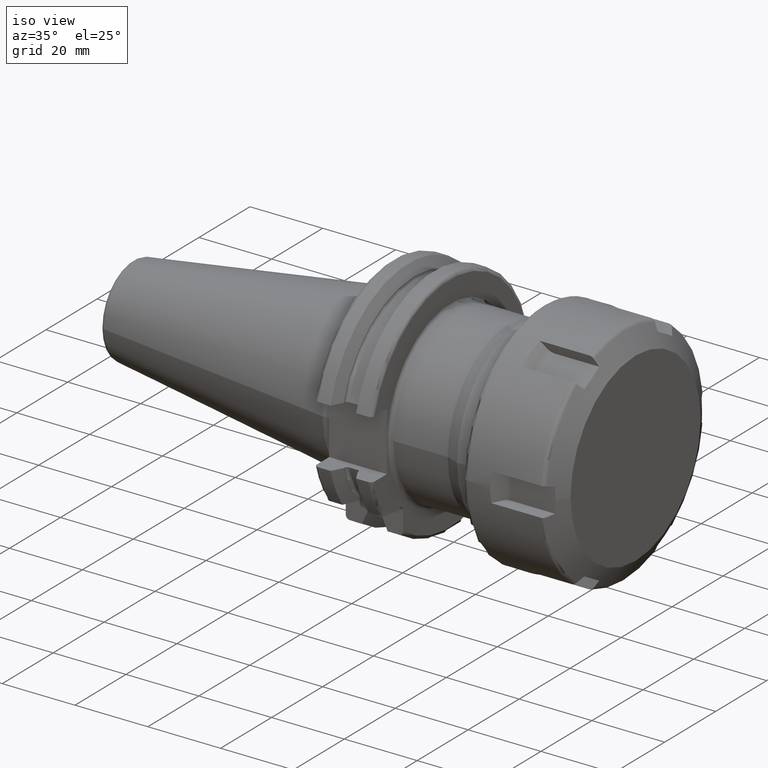
[diagram: clean part render]
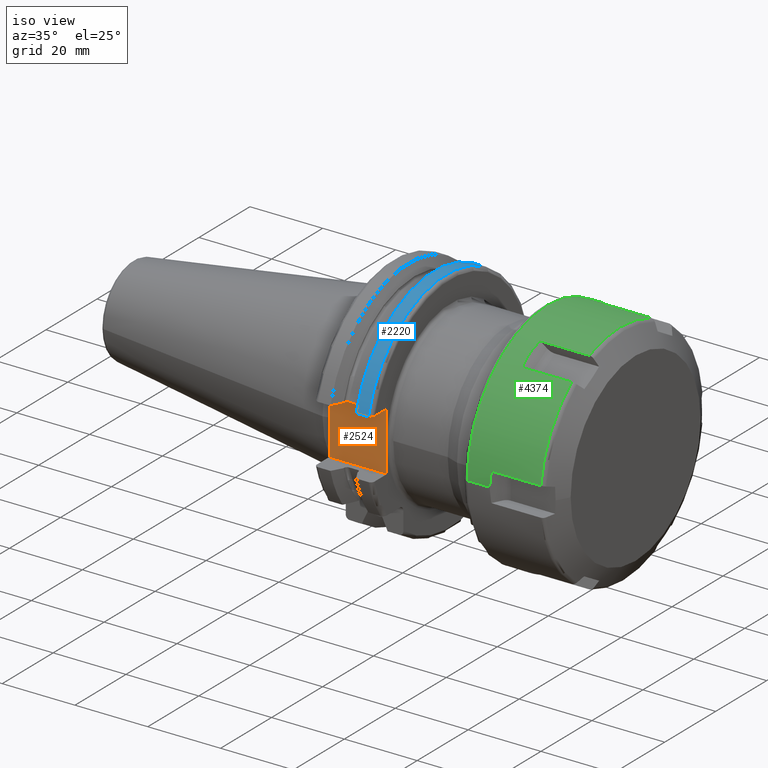
[diagram: same view with three faces highlighted in distinct colors, each labeled with its STEP entity id]
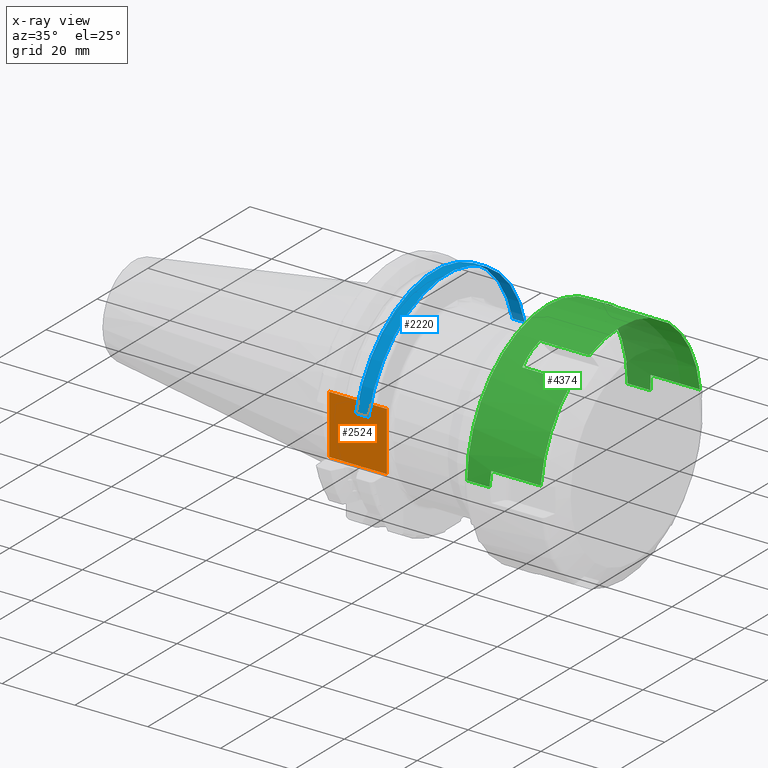
[diagram: x-ray of the same camera — body ghosted, the three highlighted faces saturated]
A machine part, iso view with three faces highlighted in distinct colors.
The next image is the same camera in x-ray (body ghosted, the three faces saturated) — at least one of them is partly hidden behind the body in this view.
Their STEP definitions:

[orange] entity #2524 — the highlighted planar face has unit normal (0, 1, 0).
#150=DIRECTION('',(0.E0,0.E0,1.E0));
#151=VECTOR('',#150,1.62E1);
#152=CARTESIAN_POINT('',(1.905E1,-2.485E1,-8.1E0));
#153=LINE('',#152,#151);
#358=DIRECTION('',(-1.E0,0.E0,0.E0));
#359=VECTOR('',#358,1.585E1);
#360=CARTESIAN_POINT('',(1.905E1,-2.485E1,8.1E0));
#361=LINE('',#360,#359);
#636=DIRECTION('',(0.E0,0.E0,1.E0));
#637=VECTOR('',#636,1.62E1);
#638=CARTESIAN_POINT('',(3.2E0,-2.485E1,-8.1E0));
#639=LINE('',#638,#637);
#865=DIRECTION('',(-1.E0,0.E0,0.E0));
#866=VECTOR('',#865,1.585E1);
#867=CARTESIAN_POINT('',(1.905E1,-2.485E1,-8.1E0));
#868=LINE('',#867,#866);
#1402=CARTESIAN_POINT('',(1.905E1,-2.485E1,-8.1E0));
#1404=VERTEX_POINT('',#1402);
#1405=CARTESIAN_POINT('',(1.905E1,-2.485E1,8.1E0));
#1406=VERTEX_POINT('',#1405);
#1430=CARTESIAN_POINT('',(3.2E0,-2.485E1,-8.1E0));
#1432=VERTEX_POINT('',#1430);
#1433=CARTESIAN_POINT('',(3.2E0,-2.485E1,8.1E0));
#1434=VERTEX_POINT('',#1433);
#2513=CARTESIAN_POINT('',(1.905E1,-2.485E1,-8.1E0));
#2514=DIRECTION('',(0.E0,1.E0,0.E0));
#2515=DIRECTION('',(0.E0,0.E0,1.E0));
#2516=AXIS2_PLACEMENT_3D('',#2513,#2514,#2515);
#2517=PLANE('',#2516);
#2518=ORIENTED_EDGE('',*,*,#1759,.F.);
#2519=ORIENTED_EDGE('',*,*,#2472,.T.);
#2520=ORIENTED_EDGE('',*,*,#2268,.T.);
#2521=ORIENTED_EDGE('',*,*,#2041,.F.);
#2522=EDGE_LOOP('',(#2518,#2519,#2520,#2521));
#2523=FACE_OUTER_BOUND('',#2522,.F.);
#2524=ADVANCED_FACE('',(#2523),#2517,.F.);
#1759=EDGE_CURVE('',#1404,#1406,#153,.T.);
#2041=EDGE_CURVE('',#1406,#1434,#361,.T.);
#2268=EDGE_CURVE('',#1432,#1434,#639,.T.);
#2472=EDGE_CURVE('',#1404,#1432,#868,.T.);

[blue] entity #2220 — the highlighted cylindrical surface (partial cylindrical patch) has radius 31.7625 mm, axis along (1, 0, 0).
#507=CARTESIAN_POINT('',(1.470405352042E1,3.071231684927E1,8.1E0));
#519=CARTESIAN_POINT('',(1.470405352042E1,-3.071231684927E1,8.1E0));
#539=DIRECTION('',(1.E0,0.E0,0.E0));
#540=VECTOR('',#539,3.345946479578E0);
#541=CARTESIAN_POINT('',(1.470405352042E1,3.071231684927E1,8.1E0));
#542=LINE('',#541,#540);
#543=CARTESIAN_POINT('',(1.805E1,0.E0,0.E0));
#544=DIRECTION('',(1.E0,0.E0,0.E0));
#545=DIRECTION('',(0.E0,9.669363825036E-1,2.550177095632E-1));
#546=AXIS2_PLACEMENT_3D('',#543,#544,#545);
#548=DIRECTION('',(1.E0,0.E0,0.E0));
#549=VECTOR('',#548,3.345946479578E0);
#550=CARTESIAN_POINT('',(1.470405352042E1,-3.071231684927E1,8.1E0));
#551=LINE('',#550,#549);
#552=CARTESIAN_POINT('',(1.470405352042E1,0.E0,0.E0));
#553=DIRECTION('',(1.E0,0.E0,0.E0));
#554=DIRECTION('',(0.E0,9.669363825036E-1,2.550177095632E-1));
#555=AXIS2_PLACEMENT_3D('',#552,#553,#554);
#1387=VERTEX_POINT('',#507);
#1388=VERTEX_POINT('',#519);
#1411=CARTESIAN_POINT('',(1.805E1,3.071231684927E1,8.1E0));
#1412=VERTEX_POINT('',#1411);
#1415=CARTESIAN_POINT('',(1.805E1,-3.071231684927E1,8.1E0));
#1416=VERTEX_POINT('',#1415);
#2209=CARTESIAN_POINT('',(-7.2615E1,0.E0,0.E0));
#2210=DIRECTION('',(1.E0,0.E0,0.E0));
#2211=DIRECTION('',(0.E0,-1.E0,0.E0));
#2212=AXIS2_PLACEMENT_3D('',#2209,#2210,#2211);
#2213=CYLINDRICAL_SURFACE('',#2212,3.17625E1);
#2214=ORIENTED_EDGE('',*,*,#1981,.T.);
#2215=ORIENTED_EDGE('',*,*,#2015,.T.);
#2216=ORIENTED_EDGE('',*,*,#2037,.F.);
#2217=ORIENTED_EDGE('',*,*,#2188,.F.);
#2218=EDGE_LOOP('',(#2214,#2215,#2216,#2217));
#2219=FACE_OUTER_BOUND('',#2218,.F.);
#2220=ADVANCED_FACE('',(#2219),#2213,.T.);
#547=CIRCLE('',#546,3.17625E1);
#556=CIRCLE('',#555,3.17625E1);
#1981=EDGE_CURVE('',#1387,#1412,#542,.T.);
#2015=EDGE_CURVE('',#1412,#1416,#547,.T.);
#2037=EDGE_CURVE('',#1388,#1416,#551,.T.);
#2188=EDGE_CURVE('',#1387,#1388,#556,.T.);

[green] entity #4374 — the highlighted cylindrical surface (partial cylindrical patch) has radius 31.5 mm, axis along (1, 0, 0).
#3248=DIRECTION('',(-1.E0,0.E0,1.226696553146E-12));
#3249=VECTOR('',#3248,6.25E0);
#3250=CARTESIAN_POINT('',(7.5E0,3.149999999997E1,3.183525763783E-14));
#3251=LINE('',#3250,#3249);
#3257=DIRECTION('',(-1.E0,0.E0,-1.230541309323E-12));
#3258=VECTOR('',#3257,6.25E0);
#3259=CARTESIAN_POINT('',(7.5E0,-3.149999999997E1,0.E0));
#3260=LINE('',#3259,#3258);
#3297=CARTESIAN_POINT('',(2.131421054840E1,1.906488828622E1,2.507548672772E1));
#3317=CARTESIAN_POINT('',(2.131421054840E1,3.124845266157E1,3.972934212316E0));
#3319=CARTESIAN_POINT('',(2.131421054840E1,-1.218356437536E1,2.904842094003E1));
#3339=CARTESIAN_POINT('',(2.131421054840E1,1.218356437536E1,2.904842094003E1));
#3341=CARTESIAN_POINT('',(2.131421054840E1,-3.124845266157E1,3.972934212316E0));
#3361=CARTESIAN_POINT('',(2.131421054840E1,-1.906488828622E1,2.507548672772E1));
#3566=CARTESIAN_POINT('',(7.5E0,-3.148999999997E1,7.936623967406E-1));
#3567=CARTESIAN_POINT('',(7.526914489918E0,-3.146308551005E1,1.861543766702E0));
#3568=CARTESIAN_POINT('',(7.607834703287E0,-3.138216529668E1,2.921239740395E0));
#3569=CARTESIAN_POINT('',(7.741547338395E0,-3.124845266157E1,3.972934212316E0));
#3585=DIRECTION('',(1.E0,0.E0,0.E0));
#3586=VECTOR('',#3585,1.357266321E1);
#3587=CARTESIAN_POINT('',(7.741547338395E0,-3.124845266157E1,3.972934212316E0));
#3588=LINE('',#3587,#3586);
#3589=CARTESIAN_POINT('',(7.5E0,0.E0,0.E0));
#3590=DIRECTION('',(1.E0,0.E0,0.E0));
#3591=DIRECTION('',(0.E0,-9.996825396825E-1,2.519563164259E-2));
#3592=AXIS2_PLACEMENT_3D('',#3589,#3590,#3591);
#3594=CARTESIAN_POINT('',(1.25E0,0.E0,0.E0));
#3595=DIRECTION('',(-1.E0,0.E0,0.E0));
#3596=DIRECTION('',(0.E0,-1.E0,0.E0));
#3597=AXIS2_PLACEMENT_3D('',#3594,#3595,#3596);
#3599=CARTESIAN_POINT('',(7.5E0,0.E0,0.E0));
#3600=DIRECTION('',(1.E0,0.E0,0.E0));
#3601=DIRECTION('',(0.E0,1.E0,0.E0));
#3602=AXIS2_PLACEMENT_3D('',#3599,#3600,#3601);
#3604=DIRECTION('',(1.E0,0.E0,0.E0));
#3605=VECTOR('',#3604,1.357266321E1);
#3606=CARTESIAN_POINT('',(7.741547338395E0,3.124845266157E1,3.972934212316E0));
#3607=LINE('',#3606,#3605);
#3608=CARTESIAN_POINT('',(2.131421054840E1,0.E0,0.E0));
#3609=DIRECTION('',(-1.E0,0.E0,0.E0));
#3610=DIRECTION('',(0.E0,6.052345487694E-1,7.960471977062E-1));
#3611=AXIS2_PLACEMENT_3D('',#3608,#3609,#3610);
#3613=DIRECTION('',(1.E0,0.E0,0.E0));
#3614=VECTOR('',#3613,1.357266321E1);
#3615=CARTESIAN_POINT('',(7.741547338395E0,1.906488828622E1,2.507548672772E1));
#3616=LINE('',#3615,#3614);
#3617=CARTESIAN_POINT('',(7.741547338395E0,1.906488828622E1,2.507548672772E1));
#3618=CARTESIAN_POINT('',(7.404800931005E0,1.693948685296E1,2.669142907526E1));
#3619=CARTESIAN_POINT('',(7.404800931005E0,1.464571221600E1,2.801574047936E1));
#3620=CARTESIAN_POINT('',(7.741547338395E0,1.218356437536E1,2.904842094003E1));
#3622=DIRECTION('',(1.E0,0.E0,0.E0));
#3623=VECTOR('',#3622,1.357266321E1);
#3624=CARTESIAN_POINT('',(7.741547338395E0,1.218356437536E1,2.904842094003E1));
#3625=LINE('',#3624,#3623);
#3626=CARTESIAN_POINT('',(2.131421054840E1,0.E0,0.E0));
#3627=DIRECTION('',(-1.E0,0.E0,0.E0));
#3628=DIRECTION('',(0.E0,-3.867798214403E-1,9.221720933354E-1));
#3629=AXIS2_PLACEMENT_3D('',#3626,#3627,#3628);
#3631=DIRECTION('',(1.E0,0.E0,0.E0));
#3632=VECTOR('',#3631,1.357266321E1);
#3633=CARTESIAN_POINT('',(7.741547338395E0,-1.218356437536E1,2.904842094003E1));
#3634=LINE('',#3633,#3632);
#3635=CARTESIAN_POINT('',(7.741547338395E0,-1.218356437536E1,2.904842094003E1));
#3636=CARTESIAN_POINT('',(7.404800931005E0,-1.464571221600E1,2.801574047936E1));
#3637=CARTESIAN_POINT('',(7.404800931005E0,-1.693948685296E1,2.669142907526E1));
#3638=CARTESIAN_POINT('',(7.741547338395E0,-1.906488828622E1,2.507548672772E1));
#3640=DIRECTION('',(1.E0,0.E0,0.E0));
#3641=VECTOR('',#3640,1.357266321E1);
#3642=CARTESIAN_POINT('',(7.741547338395E0,-1.906488828622E1,2.507548672772E1));
#3643=LINE('',#3642,#3641);
#3644=CARTESIAN_POINT('',(2.131421054840E1,0.E0,0.E0));
#3645=DIRECTION('',(-1.E0,0.E0,0.E0));
#3646=DIRECTION('',(0.E0,-9.920143702097E-1,1.261248956292E-1));
#3647=AXIS2_PLACEMENT_3D('',#3644,#3645,#3646);
#3677=CARTESIAN_POINT('',(7.741547338395E0,3.124845266157E1,3.972934212316E0));
#3678=CARTESIAN_POINT('',(7.607834703287E0,3.138216529668E1,2.921239740395E0));
#3679=CARTESIAN_POINT('',(7.526914489918E0,3.146308551005E1,1.861543766702E0));
#3680=CARTESIAN_POINT('',(7.5E0,3.148999999997E1,7.936623967410E-1));
#3821=CARTESIAN_POINT('',(1.25E0,3.149999999997E1,1.784644752757E-14));
#3822=CARTESIAN_POINT('',(1.25E0,-3.149999999997E1,-2.170408494488E-14));
#3823=VERTEX_POINT('',#3821);
#3824=VERTEX_POINT('',#3822);
#3830=VERTEX_POINT('',#3317);
#3832=CARTESIAN_POINT('',(7.5E0,3.149999999997E1,3.183525763783E-14));
#3833=VERTEX_POINT('',#3832);
#3835=CARTESIAN_POINT('',(7.5E0,3.148999999997E1,7.936623967410E-1));
#3837=VERTEX_POINT('',#3835);
#3838=CARTESIAN_POINT('',(7.741547338395E0,3.124845266157E1,3.972934212316E0));
#3839=VERTEX_POINT('',#3838);
#3847=VERTEX_POINT('',#3566);
#3848=VERTEX_POINT('',#3569);
#3855=VERTEX_POINT('',#3339);
#3856=VERTEX_POINT('',#3297);
#3857=CARTESIAN_POINT('',(7.741547338395E0,1.218356437536E1,2.904842094003E1));
#3858=VERTEX_POINT('',#3857);
#3859=CARTESIAN_POINT('',(7.741547338395E0,1.906488828622E1,2.507548672772E1));
#3860=VERTEX_POINT('',#3859);
#3870=VERTEX_POINT('',#3361);
#3871=VERTEX_POINT('',#3319);
#3872=CARTESIAN_POINT('',(7.741547338395E0,-1.906488828622E1,2.507548672772E1));
#3873=VERTEX_POINT('',#3872);
#3874=CARTESIAN_POINT('',(7.741547338395E0,-1.218356437536E1,2.904842094003E1));
#3875=VERTEX_POINT('',#3874);
#3887=VERTEX_POINT('',#3341);
#3888=CARTESIAN_POINT('',(7.5E0,-3.149999999997E1,0.E0));
#3889=VERTEX_POINT('',#3888);
#4340=CARTESIAN_POINT('',(-1.275E0,0.E0,0.E0));
#4341=DIRECTION('',(1.E0,0.E0,0.E0));
#4342=DIRECTION('',(0.E0,-1.E0,0.E0));
#4343=AXIS2_PLACEMENT_3D('',#4340,#4341,#4342);
#4344=CYLINDRICAL_SURFACE('',#4343,3.149999999997E1);
#4345=ORIENTED_EDGE('',*,*,#4289,.F.);
#4346=ORIENTED_EDGE('',*,*,#4308,.F.);
#4347=ORIENTED_EDGE('',*,*,#4335,.T.);
#4348=ORIENTED_EDGE('',*,*,#4060,.T.);
#4350=ORIENTED_EDGE('',*,*,#4349,.T.);
#4351=ORIENTED_EDGE('',*,*,#4056,.F.);
#4353=ORIENTED_EDGE('',*,*,#4352,.T.);
#4355=ORIENTED_EDGE('',*,*,#4354,.F.);
#4357=ORIENTED_EDGE('',*,*,#4356,.T.);
#4358=ORIENTED_EDGE('',*,*,#4089,.F.);
#4359=ORIENTED_EDGE('',*,*,#4179,.F.);
#4361=ORIENTED_EDGE('',*,*,#4360,.T.);
#4363=ORIENTED_EDGE('',*,*,#4362,.T.);
#4364=ORIENTED_EDGE('',*,*,#4105,.F.);
#4366=ORIENTED_EDGE('',*,*,#4365,.F.);
#4368=ORIENTED_EDGE('',*,*,#4367,.T.);
#4370=ORIENTED_EDGE('',*,*,#4369,.T.);
#4371=ORIENTED_EDGE('',*,*,#4121,.F.);
#4372=EDGE_LOOP('',(#4345,#4346,#4347,#4348,#4350,#4351,#4353,#4355,#4357,#4358,
#4359,#4361,#4363,#4364,#4366,#4368,#4370,#4371));
#4373=FACE_OUTER_BOUND('',#4372,.F.);
#4374=ADVANCED_FACE('',(#4373),#4344,.T.);
#3570=B_SPLINE_CURVE_WITH_KNOTS('',3,(#3566,#3567,#3568,#3569),.UNSPECIFIED.,
.F.,.F.,(4,4),(0.E0,1.E0),.UNSPECIFIED.);
#3593=CIRCLE('',#3592,3.149999999997E1);
#3598=CIRCLE('',#3597,3.149999999997E1);
#3603=CIRCLE('',#3602,3.149999999997E1);
#3612=CIRCLE('',#3611,3.149999999997E1);
#3621=B_SPLINE_CURVE_WITH_KNOTS('',3,(#3617,#3618,#3619,#3620),.UNSPECIFIED.,
.F.,.F.,(4,4),(0.E0,1.E0),.UNSPECIFIED.);
#3630=CIRCLE('',#3629,3.149999999997E1);
#3639=B_SPLINE_CURVE_WITH_KNOTS('',3,(#3635,#3636,#3637,#3638),.UNSPECIFIED.,
.F.,.F.,(4,4),(0.E0,1.E0),.UNSPECIFIED.);
#3648=CIRCLE('',#3647,3.149999999997E1);
#3681=B_SPLINE_CURVE_WITH_KNOTS('',3,(#3677,#3678,#3679,#3680),.UNSPECIFIED.,
.F.,.F.,(4,4),(0.E0,1.E0),.UNSPECIFIED.);
#4056=EDGE_CURVE('',#3833,#3823,#3251,.T.);
#4060=EDGE_CURVE('',#3889,#3824,#3260,.T.);
#4089=EDGE_CURVE('',#3856,#3830,#3612,.T.);
#4105=EDGE_CURVE('',#3871,#3855,#3630,.T.);
#4121=EDGE_CURVE('',#3887,#3870,#3648,.T.);
#4179=EDGE_CURVE('',#3860,#3856,#3616,.T.);
#4289=EDGE_CURVE('',#3848,#3887,#3588,.T.);
#4308=EDGE_CURVE('',#3847,#3848,#3570,.T.);
#4335=EDGE_CURVE('',#3847,#3889,#3593,.T.);
#4349=EDGE_CURVE('',#3824,#3823,#3598,.T.);
#4352=EDGE_CURVE('',#3833,#3837,#3603,.T.);
#4354=EDGE_CURVE('',#3839,#3837,#3681,.T.);
#4356=EDGE_CURVE('',#3839,#3830,#3607,.T.);
#4360=EDGE_CURVE('',#3860,#3858,#3621,.T.);
#4362=EDGE_CURVE('',#3858,#3855,#3625,.T.);
#4365=EDGE_CURVE('',#3875,#3871,#3634,.T.);
#4367=EDGE_CURVE('',#3875,#3873,#3639,.T.);
#4369=EDGE_CURVE('',#3873,#3870,#3643,.T.);